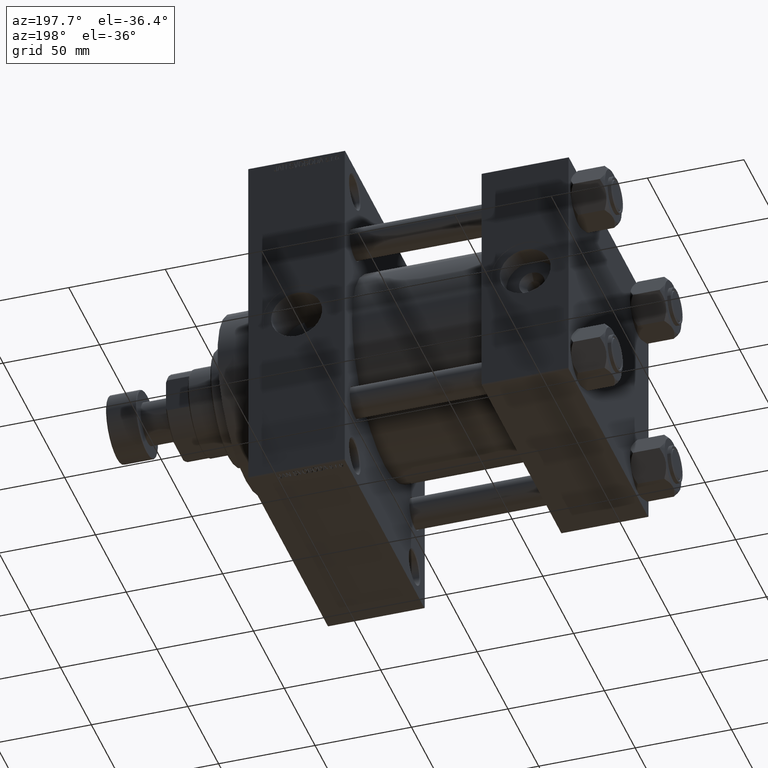
[diagram: clean part render]
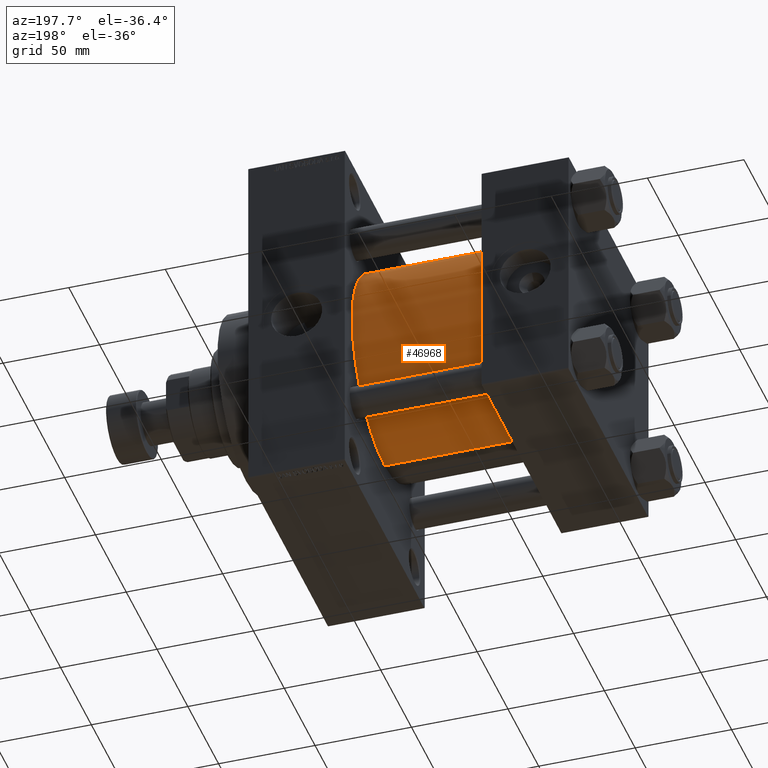
[diagram: same view with one face highlighted and labeled with its STEP entity id]
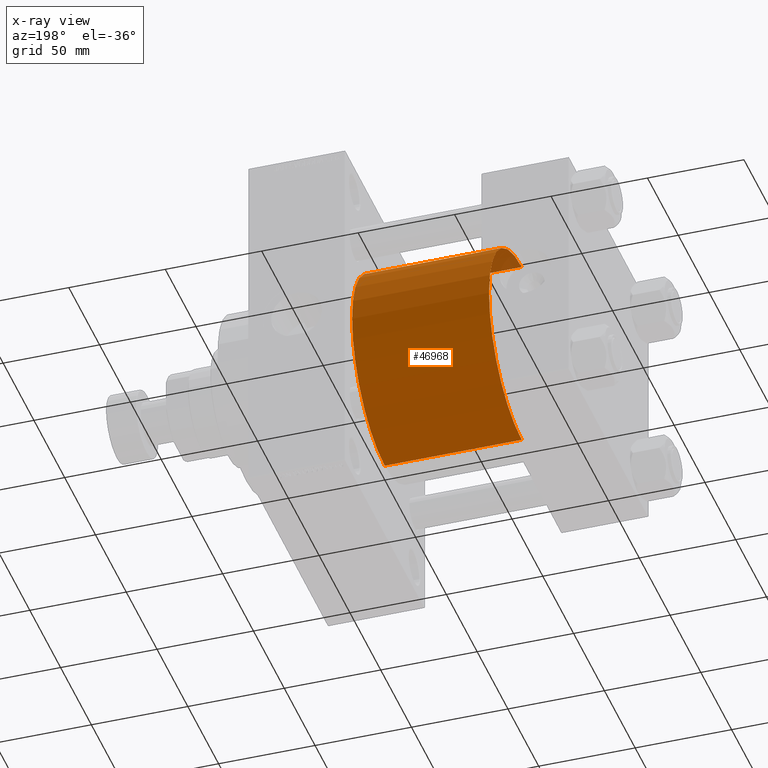
[diagram: x-ray of the same camera — body ghosted, the highlighted face saturated]
A machine part, auxiliary view. The second image highlights one B-rep face of the part: STEP entity #46968.
The next image is the same camera in x-ray: the body ghosted, the highlighted face saturated — about 2% of this face is hidden behind the body in this view.
In plain terms, the highlighted cylindrical surface (partial cylindrical patch) has radius 53 mm, axis along (-1, -0, -0).
Its self-contained STEP definition (entity closure, byte-faithful):
#1512 = DIRECTION ( 'NONE',  ( -1.000000000000000000, -0.000000000000000000, -0.000000000000000000 ) ) ;
#2367 = DIRECTION ( 'NONE',  ( 1.000000000000000000, -0.000000000000000000, 0.000000000000000000 ) ) ;
#2635 = ORIENTED_EDGE ( 'NONE', *, *, #33148, .F. ) ;
#3380 = CIRCLE ( 'NONE', #40697, 53.00000000000000711 ) ;
#4720 = VERTEX_POINT ( 'NONE', #44204 ) ;
#5965 = CARTESIAN_POINT ( 'NONE',  ( 45.00000000000000000, -2.602085213965210642E-15, 53.00000000000000711 ) ) ;
#6529 = VECTOR ( 'NONE', #45900, 1000.000000000000000 ) ;
#8317 = CYLINDRICAL_SURFACE ( 'NONE', #13535, 53.00000000000000711 ) ;
#8482 = ORIENTED_EDGE ( 'NONE', *, *, #21268, .F. ) ;
#9391 = DIRECTION ( 'NONE',  ( 0.000000000000000000, 0.000000000000000000, -1.000000000000000000 ) ) ;
#10604 = CARTESIAN_POINT ( 'NONE',  ( 115.9999999999999858, -2.602085213965210642E-15, 53.00000000000000711 ) ) ;
#11076 = CARTESIAN_POINT ( 'NONE',  ( 115.9999999999999858, -2.602085213965210642E-15, 53.00000000000000711 ) ) ;
#13187 = AXIS2_PLACEMENT_3D ( 'NONE', #21114, #40903, #9391 ) ;
#13535 = AXIS2_PLACEMENT_3D ( 'NONE', #23839, #39328, #15196 ) ;
#14039 = DIRECTION ( 'NONE',  ( 0.000000000000000000, 0.000000000000000000, 1.000000000000000000 ) ) ;
#15196 = DIRECTION ( 'NONE',  ( 0.000000000000000000, 0.000000000000000000, 1.000000000000000000 ) ) ;
#17360 = CARTESIAN_POINT ( 'NONE',  ( 45.00000000000000000, -2.602085213965210642E-15, 0.000000000000000000 ) ) ;
#17551 = VERTEX_POINT ( 'NONE', #43695 ) ;
#19346 = EDGE_LOOP ( 'NONE', ( #2635, #34870, #42596, #8482 ) ) ;
#21114 = CARTESIAN_POINT ( 'NONE',  ( 115.9999999999999858, -2.602085213965210642E-15, 0.000000000000000000 ) ) ;
#21268 = EDGE_CURVE ( 'NONE', #35635, #48428, #23048, .T. ) ;
#22861 = EDGE_CURVE ( 'NONE', #4720, #48428, #3380, .T. ) ;
#23048 = LINE ( 'NONE', #11076, #6529 ) ;
#23839 = CARTESIAN_POINT ( 'NONE',  ( 115.9999999999999858, -2.602085213965210642E-15, 0.000000000000000000 ) ) ;
#28438 = CARTESIAN_POINT ( 'NONE',  ( 115.9999999999999858, 3.888542821515762466E-15, -53.00000000000000711 ) ) ;
#28889 = EDGE_CURVE ( 'NONE', #17551, #4720, #36328, .T. ) ;
#33148 = EDGE_CURVE ( 'NONE', #17551, #35635, #37558, .T. ) ;
#34870 = ORIENTED_EDGE ( 'NONE', *, *, #28889, .T. ) ;
#35635 = VERTEX_POINT ( 'NONE', #10604 ) ;
#36328 = LINE ( 'NONE', #28438, #49000 ) ;
#37558 = CIRCLE ( 'NONE', #13187, 53.00000000000000711 ) ;
#39328 = DIRECTION ( 'NONE',  ( -1.000000000000000000, -0.000000000000000000, -0.000000000000000000 ) ) ;
#40697 = AXIS2_PLACEMENT_3D ( 'NONE', #17360, #2367, #14039 ) ;
#40903 = DIRECTION ( 'NONE',  ( 1.000000000000000000, 0.000000000000000000, 0.000000000000000000 ) ) ;
#42596 = ORIENTED_EDGE ( 'NONE', *, *, #22861, .T. ) ;
#43695 = CARTESIAN_POINT ( 'NONE',  ( 115.9999999999999858, 3.888542821515762466E-15, -53.00000000000000711 ) ) ;
#44204 = CARTESIAN_POINT ( 'NONE',  ( 45.00000000000000000, 3.888542821515762466E-15, -53.00000000000000711 ) ) ;
#45900 = DIRECTION ( 'NONE',  ( -1.000000000000000000, -0.000000000000000000, -0.000000000000000000 ) ) ;
#46968 = ADVANCED_FACE ( 'NONE', ( #50018 ), #8317, .T. ) ;
#48428 = VERTEX_POINT ( 'NONE', #5965 ) ;
#49000 = VECTOR ( 'NONE', #1512, 1000.000000000000000 ) ;
#50018 = FACE_OUTER_BOUND ( 'NONE', #19346, .T. ) ;